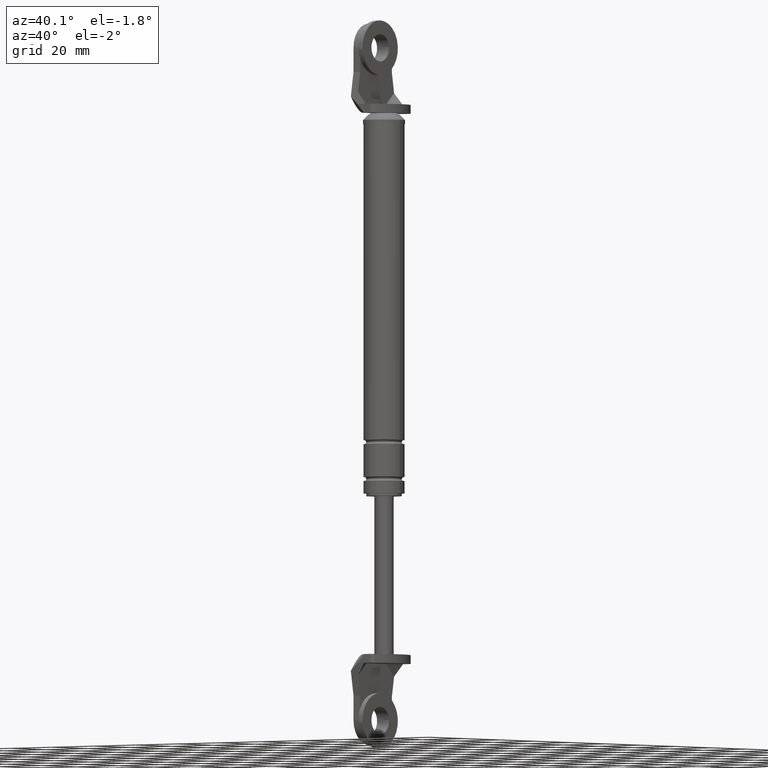
[diagram: clean part render]
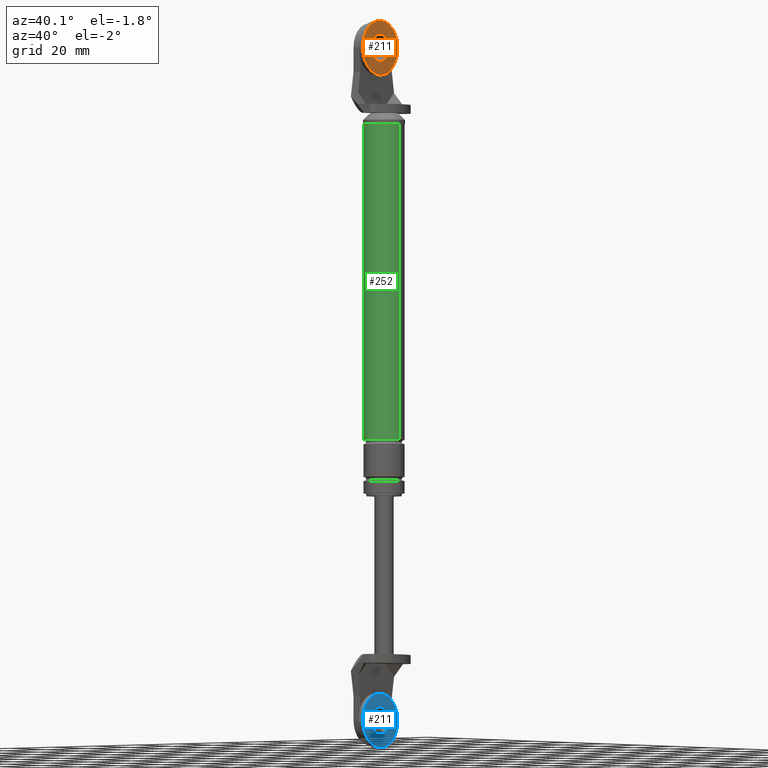
[diagram: same view with three faces highlighted in distinct colors, each labeled with its STEP entity id]
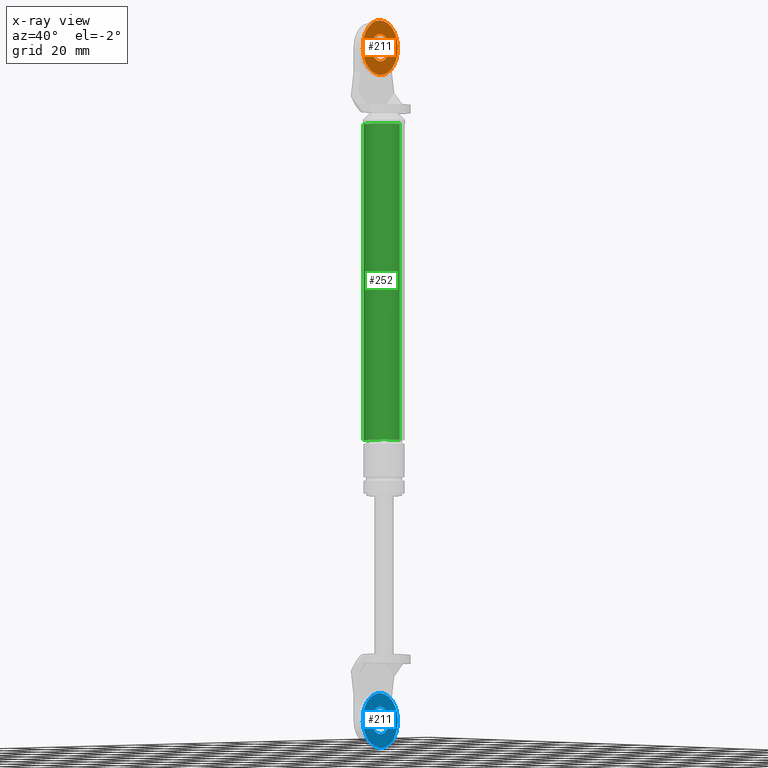
[diagram: x-ray of the same camera — body ghosted, the three highlighted faces saturated]
A machine part, auxiliary view with three faces highlighted in distinct colors.
The next image is the same camera in x-ray (body ghosted, the three faces saturated) — at least one of them is partly hidden behind the body in this view.
Their STEP definitions:

[orange] entity #211 — the highlighted planar face has unit normal (1, 0, 0).
#211=ADVANCED_FACE('',(#358,#359),#357,.T.);
#357=PLANE('',#1139);
#358=FACE_OUTER_BOUND('',#1140,.T.);
#359=FACE_BOUND('',#1141,.T.);
#1136=CARTESIAN_POINT('',(-6.70000310000E+001,2.07846096925E+001,2.66000000003E+002));
#1137=DIRECTION('',(1.00000000000E+000,0.00000000000E+000,0.00000000000E+000));
#1138=DIRECTION('',(0.00000000000E+000,-1.00000000000E+000,0.00000000000E+000));
#1139=AXIS2_PLACEMENT_3D('',#1136,#1137,#1138);
#1140=EDGE_LOOP('',(#1634,#1635,#1636));
#1141=EDGE_LOOP('',(#1637,#1638,#1639));
#1634=ORIENTED_EDGE('',*,*,#2018,.F.);
#1635=ORIENTED_EDGE('',*,*,#2019,.F.);
#1636=ORIENTED_EDGE('',*,*,#2020,.F.);
#1637=ORIENTED_EDGE('',*,*,#2021,.T.);
#1638=ORIENTED_EDGE('',*,*,#2022,.T.);
#1639=ORIENTED_EDGE('',*,*,#2023,.T.);
#2018=EDGE_CURVE('',#2346,#2347,#2348,.T.);
#2019=EDGE_CURVE('',#2354,#2346,#2355,.T.);
#2020=EDGE_CURVE('',#2347,#2354,#2361,.T.);
#2021=EDGE_CURVE('',#2367,#2368,#2369,.T.);
#2022=EDGE_CURVE('',#2368,#2375,#2376,.T.);
#2023=EDGE_CURVE('',#2375,#2367,#2382,.T.);
#2346=VERTEX_POINT('',#3628);
#2347=VERTEX_POINT('',#3629);
#2348=CIRCLE('',#3633,1.00000000008E+001);
#2354=VERTEX_POINT('',#3634);
#2355=CIRCLE('',#3638,1.00000000008E+001);
#2361=CIRCLE('',#3642,1.00000000008E+001);
#2367=VERTEX_POINT('',#3643);
#2368=VERTEX_POINT('',#3644);
#2369=CIRCLE('',#3648,5.00000000174E+000);
#2375=VERTEX_POINT('',#3649);
#2376=CIRCLE('',#3653,5.00000000174E+000);
#2382=CIRCLE('',#3657,5.00000000174E+000);
#3628=CARTESIAN_POINT('',(-6.70000310000E+001,-9.96913532293E+000,2.52214926173E+002));
#3629=CARTESIAN_POINT('',(-6.70000310000E+001,8.49285803892E-014,2.63000000002E+002));
#3630=CARTESIAN_POINT('',(-6.70000310000E+001,7.41160910422E-010,2.53000000001E+002));
#3631=DIRECTION('',(-1.00000000000E+000,1.50728876034E-015,-1.11705783034E-025));
#3632=DIRECTION('',(-2.23406478870E-025,-7.41070316284E-011,1.00000000000E+000));
#3633=AXIS2_PLACEMENT_3D('',#3630,#3631,#3632);
#3634=CARTESIAN_POINT('',(-6.70000310000E+001,9.96917333893E+000,2.53784590957E+002));
#3635=CARTESIAN_POINT('',(-6.70000310000E+001,7.41160910422E-010,2.53000000001E+002));
#3636=DIRECTION('',(-1.00000000000E+000,1.50728876034E-015,-1.11705783034E-025));
#3637=DIRECTION('',(-2.23406478870E-025,-7.41070316284E-011,1.00000000000E+000));
#3638=AXIS2_PLACEMENT_3D('',#3635,#3636,#3637);
#3639=CARTESIAN_POINT('',(-6.70000310000E+001,7.41160910422E-010,2.53000000001E+002));
#3640=DIRECTION('',(-1.00000000000E+000,1.50728876034E-015,-1.11705783034E-025));
#3641=DIRECTION('',(-2.23406478870E-025,-7.41070316284E-011,1.00000000000E+000));
#3642=AXIS2_PLACEMENT_3D('',#3639,#3640,#3641);
#3643=CARTESIAN_POINT('',(-6.70000310000E+001,5.84504371335E-014,2.58000000003E+002));
#3644=CARTESIAN_POINT('',(-6.70000310000E+001,4.98458657258E+000,2.53392296744E+002));
#3645=CARTESIAN_POINT('',(-6.70000310000E+001,1.61135238486E-009,2.53000000002E+002));
#3646=DIRECTION('',(-1.00000000000E+000,0.00000000000E+000,0.00000000000E+000));
#3647=DIRECTION('',(0.00000000000E+000,-3.22258220222E-010,1.00000000000E+000));
#3648=AXIS2_PLACEMENT_3D('',#3645,#3646,#3647);
#3649=CARTESIAN_POINT('',(-6.70000310000E+001,-4.98456766232E+000,2.52607463098E+002));
#3650=CARTESIAN_POINT('',(-6.70000310000E+001,1.61135238486E-009,2.53000000002E+002));
#3651=DIRECTION('',(-1.00000000000E+000,0.00000000000E+000,0.00000000000E+000));
#3652=DIRECTION('',(0.00000000000E+000,-3.22258220222E-010,1.00000000000E+000));
#3653=AXIS2_PLACEMENT_3D('',#3650,#3651,#3652);
#3654=CARTESIAN_POINT('',(-6.70000310000E+001,1.61135238486E-009,2.53000000002E+002));
#3655=DIRECTION('',(-1.00000000000E+000,0.00000000000E+000,0.00000000000E+000));
#3656=DIRECTION('',(0.00000000000E+000,-3.22258220222E-010,1.00000000000E+000));
#3657=AXIS2_PLACEMENT_3D('',#3654,#3655,#3656);

[blue] entity #211 — the highlighted planar face has unit normal (1, 0, 0).
#211=ADVANCED_FACE('',(#358,#359),#357,.T.);
#357=PLANE('',#1139);
#358=FACE_OUTER_BOUND('',#1140,.T.);
#359=FACE_BOUND('',#1141,.T.);
#1136=CARTESIAN_POINT('',(-6.70000310000E+001,2.07846096925E+001,2.66000000003E+002));
#1137=DIRECTION('',(1.00000000000E+000,0.00000000000E+000,0.00000000000E+000));
#1138=DIRECTION('',(0.00000000000E+000,-1.00000000000E+000,0.00000000000E+000));
#1139=AXIS2_PLACEMENT_3D('',#1136,#1137,#1138);
#1140=EDGE_LOOP('',(#1634,#1635,#1636));
#1141=EDGE_LOOP('',(#1637,#1638,#1639));
#1634=ORIENTED_EDGE('',*,*,#2018,.F.);
#1635=ORIENTED_EDGE('',*,*,#2019,.F.);
#1636=ORIENTED_EDGE('',*,*,#2020,.F.);
#1637=ORIENTED_EDGE('',*,*,#2021,.T.);
#1638=ORIENTED_EDGE('',*,*,#2022,.T.);
#1639=ORIENTED_EDGE('',*,*,#2023,.T.);
#2018=EDGE_CURVE('',#2346,#2347,#2348,.T.);
#2019=EDGE_CURVE('',#2354,#2346,#2355,.T.);
#2020=EDGE_CURVE('',#2347,#2354,#2361,.T.);
#2021=EDGE_CURVE('',#2367,#2368,#2369,.T.);
#2022=EDGE_CURVE('',#2368,#2375,#2376,.T.);
#2023=EDGE_CURVE('',#2375,#2367,#2382,.T.);
#2346=VERTEX_POINT('',#3628);
#2347=VERTEX_POINT('',#3629);
#2348=CIRCLE('',#3633,1.00000000008E+001);
#2354=VERTEX_POINT('',#3634);
#2355=CIRCLE('',#3638,1.00000000008E+001);
#2361=CIRCLE('',#3642,1.00000000008E+001);
#2367=VERTEX_POINT('',#3643);
#2368=VERTEX_POINT('',#3644);
#2369=CIRCLE('',#3648,5.00000000174E+000);
#2375=VERTEX_POINT('',#3649);
#2376=CIRCLE('',#3653,5.00000000174E+000);
#2382=CIRCLE('',#3657,5.00000000174E+000);
#3628=CARTESIAN_POINT('',(-6.70000310000E+001,-9.96913532293E+000,2.52214926173E+002));
#3629=CARTESIAN_POINT('',(-6.70000310000E+001,8.49285803892E-014,2.63000000002E+002));
#3630=CARTESIAN_POINT('',(-6.70000310000E+001,7.41160910422E-010,2.53000000001E+002));
#3631=DIRECTION('',(-1.00000000000E+000,1.50728876034E-015,-1.11705783034E-025));
#3632=DIRECTION('',(-2.23406478870E-025,-7.41070316284E-011,1.00000000000E+000));
#3633=AXIS2_PLACEMENT_3D('',#3630,#3631,#3632);
#3634=CARTESIAN_POINT('',(-6.70000310000E+001,9.96917333893E+000,2.53784590957E+002));
#3635=CARTESIAN_POINT('',(-6.70000310000E+001,7.41160910422E-010,2.53000000001E+002));
#3636=DIRECTION('',(-1.00000000000E+000,1.50728876034E-015,-1.11705783034E-025));
#3637=DIRECTION('',(-2.23406478870E-025,-7.41070316284E-011,1.00000000000E+000));
#3638=AXIS2_PLACEMENT_3D('',#3635,#3636,#3637);
#3639=CARTESIAN_POINT('',(-6.70000310000E+001,7.41160910422E-010,2.53000000001E+002));
#3640=DIRECTION('',(-1.00000000000E+000,1.50728876034E-015,-1.11705783034E-025));
#3641=DIRECTION('',(-2.23406478870E-025,-7.41070316284E-011,1.00000000000E+000));
#3642=AXIS2_PLACEMENT_3D('',#3639,#3640,#3641);
#3643=CARTESIAN_POINT('',(-6.70000310000E+001,5.84504371335E-014,2.58000000003E+002));
#3644=CARTESIAN_POINT('',(-6.70000310000E+001,4.98458657258E+000,2.53392296744E+002));
#3645=CARTESIAN_POINT('',(-6.70000310000E+001,1.61135238486E-009,2.53000000002E+002));
#3646=DIRECTION('',(-1.00000000000E+000,0.00000000000E+000,0.00000000000E+000));
#3647=DIRECTION('',(0.00000000000E+000,-3.22258220222E-010,1.00000000000E+000));
#3648=AXIS2_PLACEMENT_3D('',#3645,#3646,#3647);
#3649=CARTESIAN_POINT('',(-6.70000310000E+001,-4.98456766232E+000,2.52607463098E+002));
#3650=CARTESIAN_POINT('',(-6.70000310000E+001,1.61135238486E-009,2.53000000002E+002));
#3651=DIRECTION('',(-1.00000000000E+000,0.00000000000E+000,0.00000000000E+000));
#3652=DIRECTION('',(0.00000000000E+000,-3.22258220222E-010,1.00000000000E+000));
#3653=AXIS2_PLACEMENT_3D('',#3650,#3651,#3652);
#3654=CARTESIAN_POINT('',(-6.70000310000E+001,1.61135238486E-009,2.53000000002E+002));
#3655=DIRECTION('',(-1.00000000000E+000,0.00000000000E+000,0.00000000000E+000));
#3656=DIRECTION('',(0.00000000000E+000,-3.22258220222E-010,1.00000000000E+000));
#3657=AXIS2_PLACEMENT_3D('',#3654,#3655,#3656);

[green] entity #252 — the highlighted cylindrical surface (edge-blend (fillet) strip) has radius 7.5 mm, axis along (0, 0, -1).
#252=ADVANCED_FACE('',(#777),#776,.T.);
#776=CYLINDRICAL_SURFACE('',#1395,7.50000000000E+000);
#777=FACE_OUTER_BOUND('',#1396,.T.);
#1392=CARTESIAN_POINT('',(7.00000000000E+000,0.00000000000E+000,1.02800000000E+003));
#1393=DIRECTION('',(-0.00000000000E+000,-0.00000000000E+000,1.00000000000E+000));
#1394=DIRECTION('',(1.00000000000E+000,-0.00000000000E+000,-0.00000000000E+000));
#1395=AXIS2_PLACEMENT_3D('',#1392,#1393,#1394);
#1396=EDGE_LOOP('',(#1836,#1837,#1838,#1839));
#1836=ORIENTED_EDGE('',*,*,#2100,.F.);
#1837=ORIENTED_EDGE('',*,*,#2124,.F.);
#1838=ORIENTED_EDGE('',*,*,#2030,.F.);
#1839=ORIENTED_EDGE('',*,*,#2125,.T.);
#2030=EDGE_CURVE('',#2426,#2427,#2428,.T.);
#2100=EDGE_CURVE('',#2898,#2899,#2900,.T.);
#2124=EDGE_CURVE('',#2427,#2898,#3056,.T.);
#2125=EDGE_CURVE('',#2426,#2899,#3062,.T.);
#2426=VERTEX_POINT('',#3676);
#2427=VERTEX_POINT('',#3677);
#2428=CIRCLE('',#3681,7.50000000000E+000);
#2898=VERTEX_POINT('',#3978);
#2899=VERTEX_POINT('',#3979);
#2900=CIRCLE('',#3983,7.50000000000E+000);
#3056=(BOUNDED_CURVE() B_SPLINE_CURVE(1,(#4076,#4077),.UNSPECIFIED.,.F.,.F.) B_SPLINE_CURVE_WITH_KNOTS((2,2),(7.38007379691E-002,9.26199262206E-001),.UNSPECIFIED.) CURVE() GEOMETRIC_REPRESENTATION_ITEM() RATIONAL_B_SPLINE_CURVE((1.00000000000E+000,1.00000000000E+000)) REPRESENTATION_ITEM('') );
#3062=(BOUNDED_CURVE() B_SPLINE_CURVE(1,(#4078,#4079),.UNSPECIFIED.,.F.,.F.) B_SPLINE_CURVE_WITH_KNOTS((2,2),(7.38007380074E-002,9.26199261993E-001),.UNSPECIFIED.) CURVE() GEOMETRIC_REPRESENTATION_ITEM() RATIONAL_B_SPLINE_CURVE((7.50000000000E-001,7.50000000000E-001)) REPRESENTATION_ITEM('') );
#3676=CARTESIAN_POINT('',(-5.00000000000E-001,0.00000000000E+000,2.80000000000E+001));
#3677=CARTESIAN_POINT('',(1.45000000000E+001,5.92118946467E-016,2.80000000000E+001));
#3678=CARTESIAN_POINT('',(7.00000000000E+000,0.00000000000E+000,2.80000000000E+001));
#3679=DIRECTION('',(-0.00000000000E+000,0.00000000000E+000,-1.00000000000E+000));
#3680=DIRECTION('',(-1.00000000000E+000,-1.22460635382E-016,0.00000000000E+000));
#3681=AXIS2_PLACEMENT_3D('',#3678,#3679,#3680);
#3978=CARTESIAN_POINT('',(1.45000000000E+001,0.00000000000E+000,1.43500000000E+002));
#3979=CARTESIAN_POINT('',(-5.00000000000E-001,5.92118946467E-016,1.43500000000E+002));
#3980=CARTESIAN_POINT('',(7.00000000000E+000,0.00000000000E+000,1.43500000000E+002));
#3981=DIRECTION('',(0.00000000000E+000,0.00000000000E+000,1.00000000000E+000));
#3982=DIRECTION('',(1.00000000000E+000,-1.22460635382E-016,0.00000000000E+000));
#3983=AXIS2_PLACEMENT_3D('',#3980,#3981,#3982);
#4076=CARTESIAN_POINT('',(1.45000000000E+001,0.00000000000E+000,2.79999999948E+001));
#4077=CARTESIAN_POINT('',(1.45000000000E+001,0.00000000000E+000,1.43500000029E+002));
#4078=CARTESIAN_POINT('',(-5.00000000000E-001,-2.96059473233E-016,2.80000000000E+001));
#4079=CARTESIAN_POINT('',(-5.00000000000E-001,-2.96059473233E-016,1.43500000000E+002));